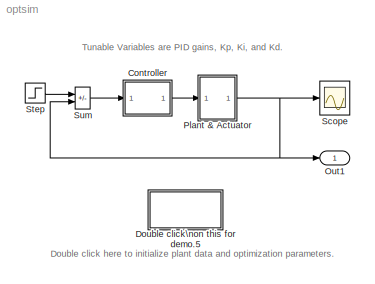
MODEL optsim
KIND model
CONFIG AbsTol = 1e-6
CONFIG FixedStep = 1
CONFIG MaxStep = auto
CONFIG PostLoadFcn = optsiminit
CONFIG PreLoadFcn = a1=3; a2=43;
CONFIG RelTol = 1e-3
CONFIG Solver = ode5
CONFIG SolverMode = SingleTasking
CONFIG StartTime = 0.0
CONFIG StopTime = 100
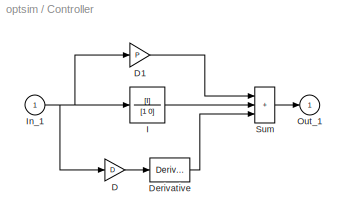
BLOCK [SubSystem] Controller
  MaskCallbackString = ||
  MaskDescription = Enter expressions for proportional, integral, and derivative terms.
  MaskDisplay = disp('PID')
  MaskEnableString = on,on,on
  MaskHelp = This block implements a PID controller where paramaters are entered for the Proportional, Integral and Derivative terms.
  MaskIconFrame = on
  MaskIconOpaque = on
  MaskIconRotate = none
  MaskIconUnits = autoscale
  MaskInitialization = P=@1; I=@2; D=@3;
  MaskPromptString = Proportional:|Integral|Derivative:
  MaskStyleString = edit,edit,edit
  MaskTunableValueString = on,on,on
  MaskType = PID Controller
  MaskValueString = Kp|Ki|Kd
  MaskVisibilityString = on,on,on
  Ports = [1, 1, 0, 0, 0]
  ShowPortLabels = on
BLOCK [Gain] Controller/D
  Gain = D
  SaturateOnIntegerOverflow = on
BLOCK [Gain] Controller/D1
  Gain = P
  SaturateOnIntegerOverflow = on
BLOCK [Derivative] Controller/Derivative
BLOCK [TransferFcn] Controller/I
  Denominator = [1 0]
  Numerator = [I]
BLOCK [Inport] Controller/In_1
  DataType = auto
  Port = 1
  PortWidth = -1
  SampleTime = -1
  SignalType = auto
BLOCK [Outport] Controller/Out_1
  InitialOutput = 0
  OutputWhenDisabled = held
  Port = 1
BLOCK [Sum] Controller/Sum
  IconShape = rectangular
  Inputs = +++
  Ports = [3, 1, 0, 0, 0]
  SaturateOnIntegerOverflow = on
BLOCK [SubSystem] Double click\non this for demo.5
  MaskDisplay = disp('optsiminit')
  MaskIconFrame = on
  MaskIconOpaque = on
  MaskIconRotate = none
  MaskIconUnits = autoscale
  OpenFcn = optsiminit
  Ports = [0, 0, 0, 0, 0]
  ShowPortLabels = on
BLOCK [Outport] Out1
  InitialOutput = []
  OutputWhenDisabled = held
  Port = 1
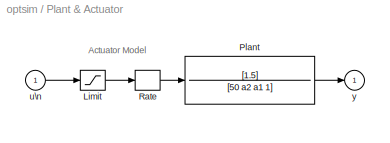
BLOCK [SubSystem] Plant & Actuator
  Ports = [1, 1, 0, 0, 0]
  ShowPortLabels = on
BLOCK [Saturate] Plant & Actuator/Limit
  LowerLimit = -2
  UpperLimit = 2
BLOCK [TransferFcn] Plant & Actuator/Plant
  Denominator = [50 a2 a1 1]
  Numerator = [1.5]
BLOCK [RateLimiter] Plant & Actuator/Rate
  FallingSlewLimit = -0.8
  RisingSlewLimit = 0.8
BLOCK [Inport] Plant & Actuator/u\n
  DataType = auto
  Port = 1
  PortWidth = -1
  SampleTime = -1
  SignalType = auto
BLOCK [Outport] Plant & Actuator/y
  InitialOutput = 0
  OutputWhenDisabled = held
  Port = 1
BLOCK [Scope] Scope
  DataFormat = StructureWithTime
  Decimation = 1
  Floating = off
  Grid = on
  LimitMaxRows = on
  MaxRows = 5000
  NumInputPorts = 1
  Ports = [1, 0, 0, 0, 0]
  SampleInput = off
  SampleTime = 0
  SaveName = ScopeData
  SaveToWorkspace = off
  TickLabels = on
  TimeRange = 100
  YMax = 1.4
  YMin = 0
  ZoomMode = on
BLOCK [Step] Step
  After = 1
  Before = 0
  SampleTime = 0
  Time = 0
BLOCK [Sum] Sum
  IconShape = rectangular
  Inputs = +-
  Ports = [2, 1, 0, 0, 0]
  SaturateOnIntegerOverflow = on
LINE Controller/D1:1 -> Controller/Sum:1
LINE Controller/D:1 -> Controller/Derivative:1
LINE Controller/Derivative:1 -> Controller/Sum:3
LINE Controller/I:1 -> Controller/Sum:2
NET Controller/In_1:1 -> Controller/D1:1, Controller/D:1, Controller/I:1
LINE Controller/Sum:1 -> Controller/Out_1:1
LINE Controller:1 -> Plant & Actuator:1
LINE Plant & Actuator/Limit:1 -> Plant & Actuator/Rate:1
LINE Plant & Actuator/Plant:1 -> Plant & Actuator/y:1
LINE Plant & Actuator/Rate:1 -> Plant & Actuator/Plant:1
LINE Plant & Actuator/u\n:1 -> Plant & Actuator/Limit:1
NET Plant & Actuator:1 -> Out1:1, Scope:1, Sum:2
LINE Step:1 -> Sum:1
LINE Sum:1 -> Controller:1
note: NET lines group one-source signal fan-out (src -> all destinations, sorted); 1:1 wires keep LINE
